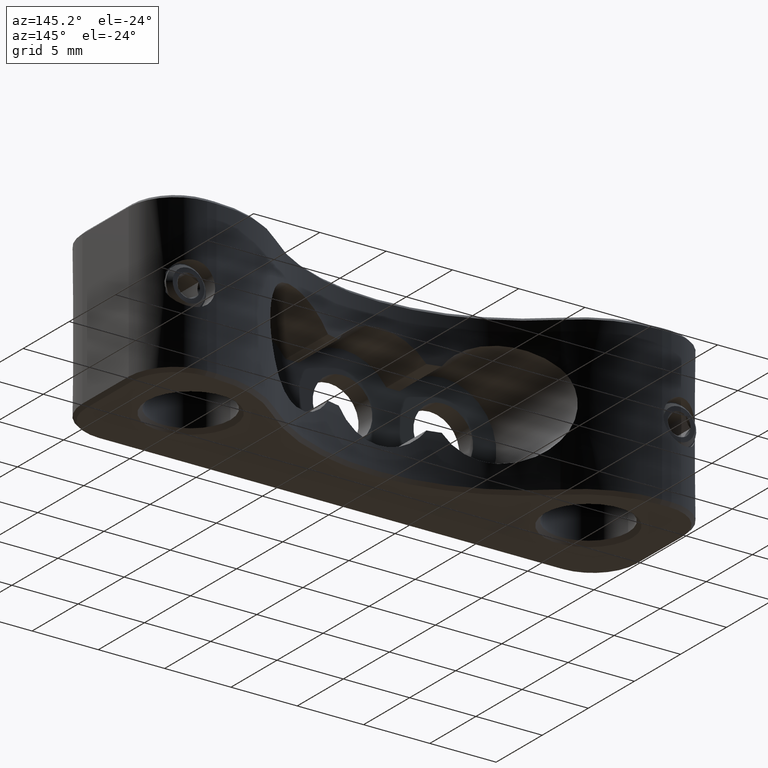
[diagram: clean part render]
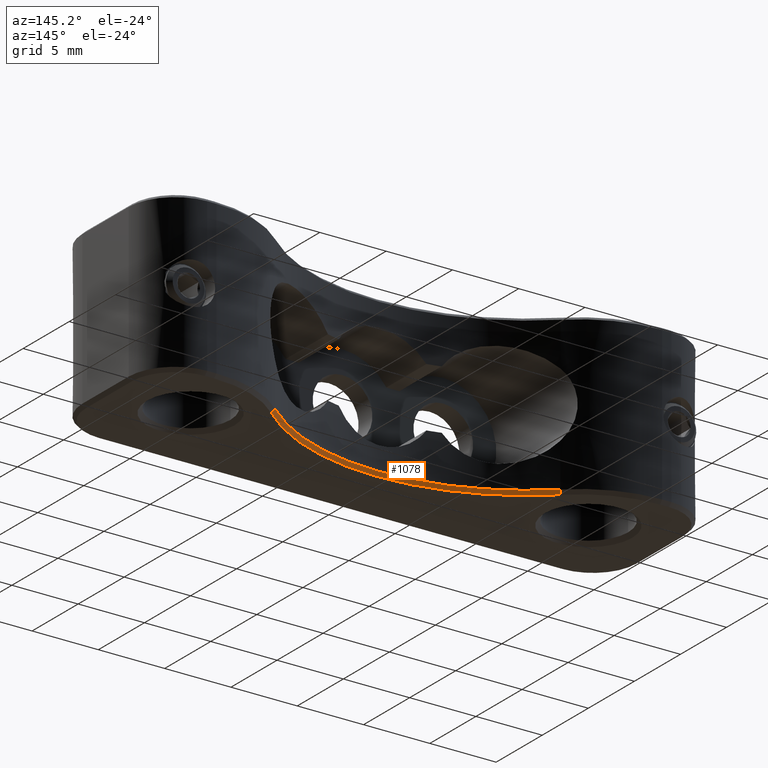
[diagram: same view with one face highlighted and labeled with its STEP entity id]
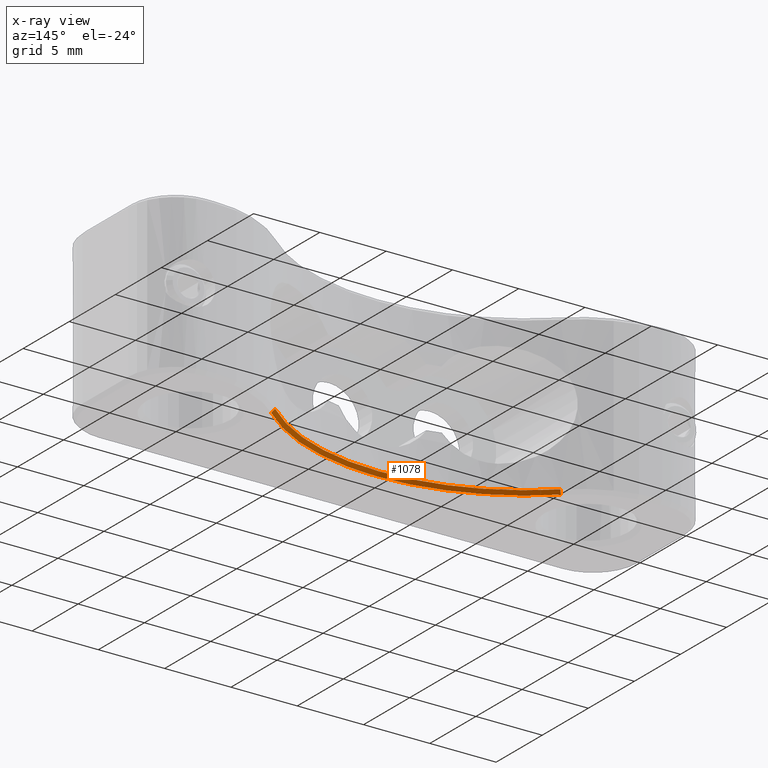
[diagram: x-ray of the same camera — body ghosted, the highlighted face saturated]
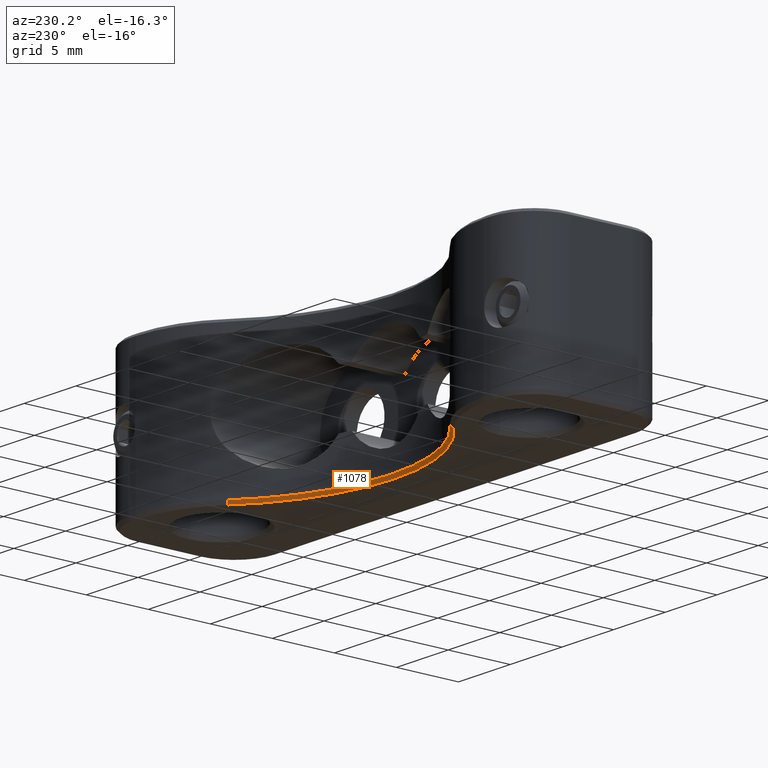
[diagram: same view with one face highlighted and labeled with its STEP entity id]
A machine part, auxiliary view. The second image highlights one B-rep face of the part: STEP entity #1078.
The next image is the same camera in x-ray: the body ghosted, the highlighted face saturated — about 0% of this face is hidden behind the body in this view.
A second angle (auxiliary view) of the same face is appended — the face is thin or edge-on in the first view.
In plain terms, the highlighted conical surface has half-angle 45 deg.
Its self-contained STEP definition (entity closure, byte-faithful):
#71 = VERTEX_POINT ( 'NONE', #3985 ) ;
#121 = EDGE_LOOP ( 'NONE', ( #3830, #5053, #5031, #3647 ) ) ;
#380 = EDGE_CURVE ( 'NONE', #71, #1195, #5123, .T. ) ;
#432 = DIRECTION ( 'NONE',  ( -1.000000000000000000, 0.000000000000000000, 0.000000000000000000 ) ) ;
#917 = VERTEX_POINT ( 'NONE', #4605 ) ;
#953 = DIRECTION ( 'NONE',  ( -1.000000000000000000, 0.000000000000000000, 0.000000000000000000 ) ) ;
#982 = EDGE_CURVE ( 'NONE', #71, #917, #1081, .T. ) ;
#992 = CARTESIAN_POINT ( 'NONE',  ( 0.000000000000000000, 21.49999999999999645, -5.749999999999996447 ) ) ;
#1078 = ADVANCED_FACE ( 'NONE', ( #5569 ), #2792, .F. ) ;
#1081 = LINE ( 'NONE', #1531, #5855 ) ;
#1195 = VERTEX_POINT ( 'NONE', #1490 ) ;
#1199 = AXIS2_PLACEMENT_3D ( 'NONE', #992, #2367, #953 ) ;
#1219 = VERTEX_POINT ( 'NONE', #3770 ) ;
#1490 = CARTESIAN_POINT ( 'NONE',  ( -10.76170990131215532, 9.659999999999996589, -5.749999999999996447 ) ) ;
#1531 = CARTESIAN_POINT ( 'NONE',  ( 10.76170990131215710, 9.659999999999994813, -5.749999999999996447 ) ) ;
#1877 = VECTOR ( 'NONE', #3721, 1000.000000000000114 ) ;
#2086 = DIRECTION ( 'NONE',  ( -1.000000000000000000, 0.000000000000000000, 0.000000000000000000 ) ) ;
#2138 = DIRECTION ( 'NONE',  ( -0.000000000000000000, -0.000000000000000000, -1.000000000000000000 ) ) ;
#2243 = CARTESIAN_POINT ( 'NONE',  ( 0.000000000000000000, 21.49999999999999645, -6.000000000000000000 ) ) ;
#2367 = DIRECTION ( 'NONE',  ( -0.000000000000000000, -0.000000000000000000, -1.000000000000000000 ) ) ;
#2687 = CIRCLE ( 'NONE', #2690, 16.25000000000000355 ) ;
#2690 = AXIS2_PLACEMENT_3D ( 'NONE', #2243, #5433, #432 ) ;
#2792 = CONICAL_SURFACE ( 'NONE', #3939, 16.25000000000000355, 0.7853981633974482790 ) ;
#3000 = CARTESIAN_POINT ( 'NONE',  ( 0.000000000000000000, 21.49999999999999645, -6.000000000000000000 ) ) ;
#3461 = EDGE_CURVE ( 'NONE', #1195, #1219, #4331, .T. ) ;
#3647 = ORIENTED_EDGE ( 'NONE', *, *, #380, .F. ) ;
#3721 = DIRECTION ( 'NONE',  ( -0.4756048780237644991, -0.5232590180780454236, -0.7071067811865473507 ) ) ;
#3770 = CARTESIAN_POINT ( 'NONE',  ( -10.92986161852016025, 9.474999999999994316, -6.000000000000000000 ) ) ;
#3830 = ORIENTED_EDGE ( 'NONE', *, *, #982, .T. ) ;
#3939 = AXIS2_PLACEMENT_3D ( 'NONE', #3000, #2138, #2086 ) ;
#3985 = CARTESIAN_POINT ( 'NONE',  ( 10.76170990131215532, 9.659999999999996589, -5.749999999999996447 ) ) ;
#4331 = LINE ( 'NONE', #4627, #1877 ) ;
#4605 = CARTESIAN_POINT ( 'NONE',  ( 10.92986161852016025, 9.474999999999994316, -6.000000000000000000 ) ) ;
#4627 = CARTESIAN_POINT ( 'NONE',  ( -10.76170990131215532, 9.659999999999996589, -5.749999999999996447 ) ) ;
#4717 = DIRECTION ( 'NONE',  ( 0.4756048780237644991, -0.5232590180780454236, -0.7071067811865473507 ) ) ;
#5031 = ORIENTED_EDGE ( 'NONE', *, *, #3461, .F. ) ;
#5053 = ORIENTED_EDGE ( 'NONE', *, *, #5885, .F. ) ;
#5123 = CIRCLE ( 'NONE', #1199, 16.00000000000000000 ) ;
#5433 = DIRECTION ( 'NONE',  ( -0.000000000000000000, -0.000000000000000000, 1.000000000000000000 ) ) ;
#5569 = FACE_OUTER_BOUND ( 'NONE', #121, .T. ) ;
#5855 = VECTOR ( 'NONE', #4717, 1000.000000000000114 ) ;
#5885 = EDGE_CURVE ( 'NONE', #1219, #917, #2687, .T. ) ;